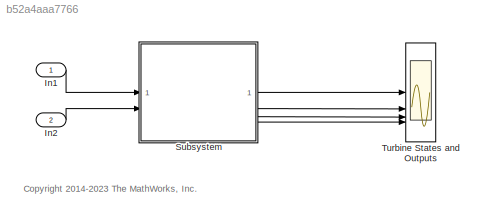
MODEL slx_b52a4aaa7766
KIND model
CONFIG AbsTol = auto
CONFIG EnableMultiTasking = on
CONFIG FixedStep = 0.001
CONFIG MaxStep = 1e-4
CONFIG MinStep = auto
CONFIG RelTol = 1e-3
CONFIG SampleTimeConstraint = Unconstrained
CONFIG SolverName = ode3
CONFIG StartTime = 0.0
CONFIG StopTime = 20
BLOCK [Inport] In1
BLOCK [Inport] In2
  Port = 2
BLOCK [ModelReference] Subsystem
  ModelNameDialog = ControlLogic.slx
  ModelReferenceVersion = 6.1
BLOCK [Scope] Turbine States and Outputs
  Floating = off
  NumInputPorts = 4
  ScopeSpecificationString = Simulink.scopes.TimeScopeBlockCfg('CurrentConfiguration', extmgr.ConfigurationSet(extmgr.Configuration('Core','General UI',true),extmgr.Configuration('Core','Source UI',true),extmgr.Configuration('Sources','WiredSimulink',true,'DataLoggingSaveFormat','StructureWithTime','DataLoggingDecimation','1','DataLoggingDecimateData',true),extmgr.Configuration('Visuals','Time Domain',true,'SerializedDisplays...<+3638ch>
ANNOTATION (root): <copyright redacted>
LINE In1:1 -> Subsystem:1
LINE In2:1 -> Subsystem:2
LINE Subsystem:1 -> Turbine States and Outputs:1
LINE Subsystem:2 -> Turbine States and Outputs:2
LINE Subsystem:3 -> Turbine States and Outputs:3
LINE Subsystem:4 -> Turbine States and Outputs:4
